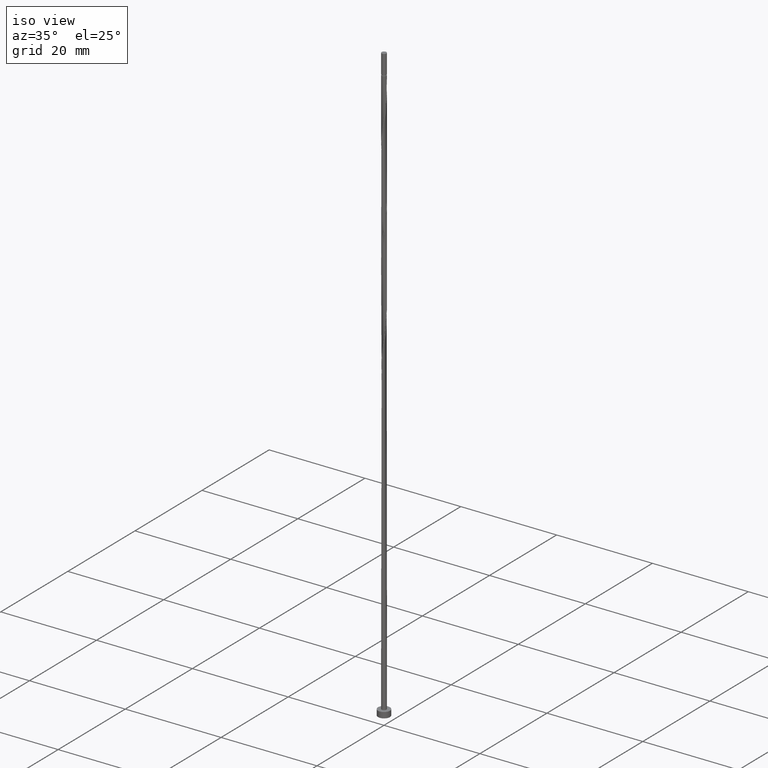
[diagram: clean part render]
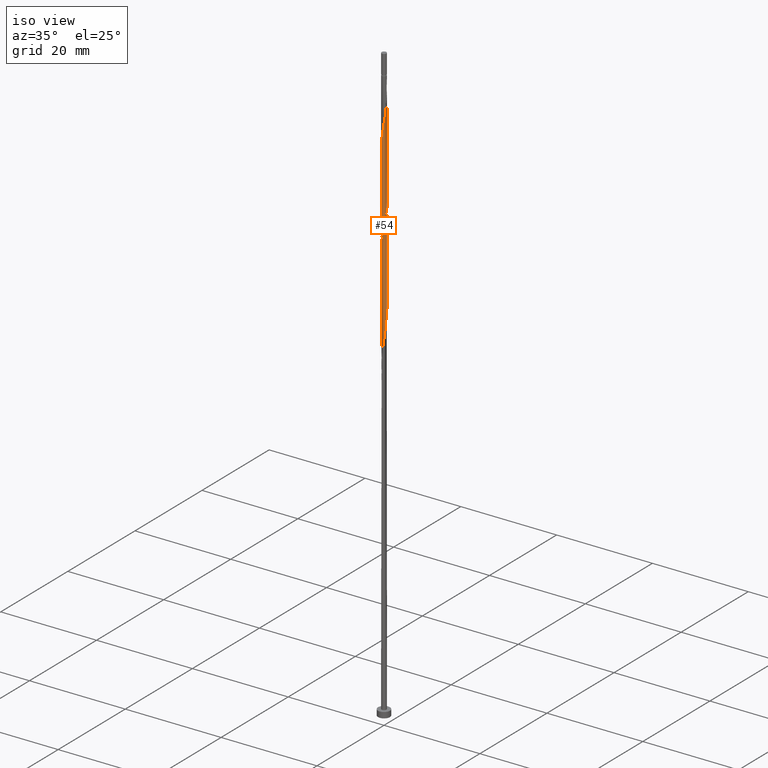
[diagram: same view with one face highlighted and labeled with its STEP entity id]
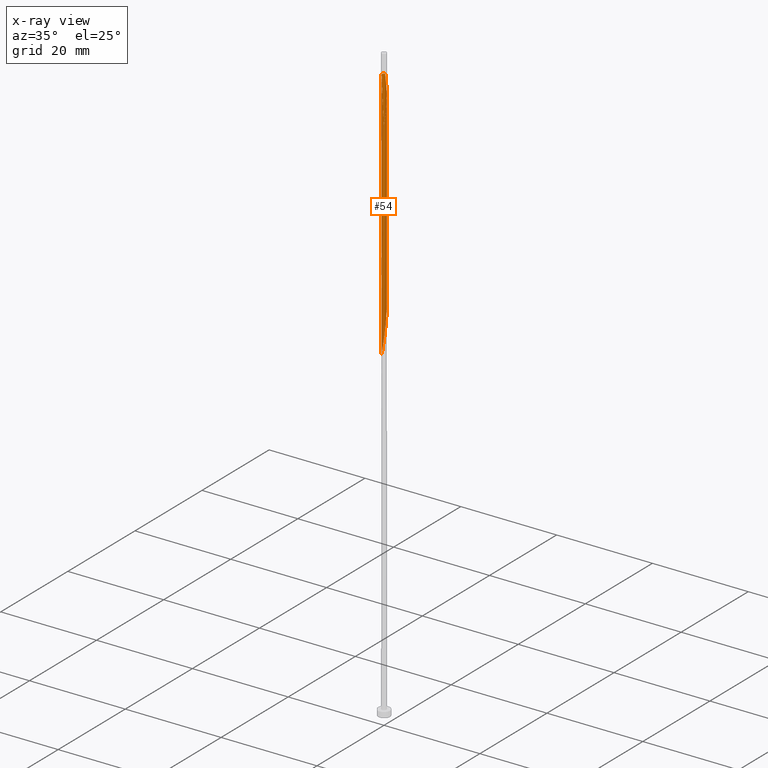
[diagram: x-ray of the same camera — body ghosted, the highlighted face saturated]
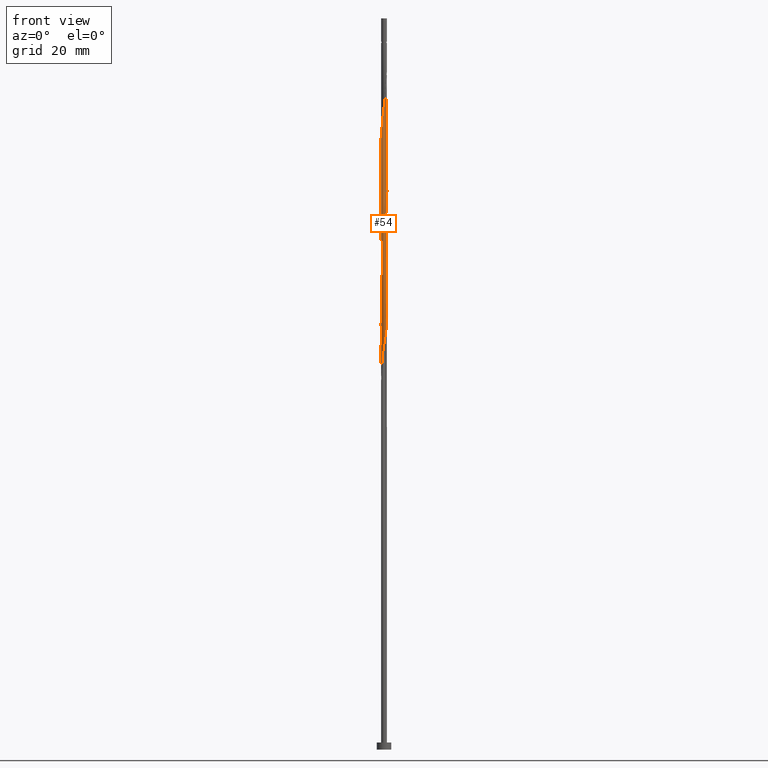
[diagram: same view with one face highlighted and labeled with its STEP entity id]
A machine part, iso view. The second image highlights one B-rep face of the part: STEP entity #54.
The next image is the same camera in x-ray: the body ghosted, the highlighted face saturated — about 0% of this face is hidden behind the body in this view.
A second angle (front view) of the same face is appended — the face is thin or edge-on in the first view.
In plain terms, the highlighted cylindrical surface (bore or boss wall) has radius 0.5 mm, axis along (-0, -0, -1).
Its self-contained STEP definition (entity closure, byte-faithful):
#2 = CARTESIAN_POINT ( 'NONE',  ( 0.09949874371066202983, 0.4900000000000007683, 99.97861331922247530 ) ) ;
#9 = CARTESIAN_POINT ( 'NONE',  ( 0.1771071194696849649, 0.4742409471643930785, 99.45777998588917512 ) ) ;
#20 = CARTESIAN_POINT ( 'NONE',  ( -0.4549022214184802460, -0.2075185990424293081, 65.60361331922247530 ) ) ;
#27 = CARTESIAN_POINT ( 'NONE',  ( 0.4742409471643930785, -0.1771071194696849371, 73.41611331922246109 ) ) ;
#52 = CARTESIAN_POINT ( 'NONE',  ( 0.2460472558129308540, -0.4352708902590740059, 111.4369466525557897 ) ) ;
#54 = ADVANCED_FACE ( 'NONE', ( #1329 ), #106, .T. ) ;
#57 = EDGE_CURVE ( 'NONE', #176, #658, #398, .T. ) ;
#58 = ORIENTED_EDGE ( 'NONE', *, *, #318, .F. ) ;
#79 = CARTESIAN_POINT ( 'NONE',  ( -0.2075185990424293636, 0.4549022214184802460, 81.22861331922248951 ) ) ;
#81 = AXIS2_PLACEMENT_3D ( 'NONE', #1258, #235, #784 ) ;
#88 = CARTESIAN_POINT ( 'NONE',  ( 0.1354691653006749874, -0.4877699385847474312, 91.12444665255581810 ) ) ;
#95 = DIRECTION ( 'NONE',  ( -0.000000000000000000, -0.000000000000000000, -1.000000000000000000 ) ) ;
#106 = CYLINDRICAL_SURFACE ( 'NONE', #1331, 0.5000000000000000000 ) ;
#116 = CARTESIAN_POINT ( 'NONE',  ( -0.09949874371066196044, -0.4900000000000007683, 68.72861331922247530 ) ) ;
#124 = CARTESIAN_POINT ( 'NONE',  ( 0.2460472558129309373, 0.4352708902590740059, 78.10361331922250372 ) ) ;
#127 = CARTESIAN_POINT ( 'NONE',  ( -0.5000000000000000000, 0.000000000000000000, 125.0000000000000000 ) ) ;
#129 = CARTESIAN_POINT ( 'NONE',  ( -0.5000000000000004441, 0.05025189076296197876, 105.5174445186181913 ) ) ;
#131 = CARTESIAN_POINT ( 'NONE',  ( 0.3379344330689691978, -0.3685109482041951101, 71.85361331922246109 ) ) ;
#135 = CARTESIAN_POINT ( 'NONE',  ( -0.1354691653006751817, -0.4877699385847474867, 108.8327799858891609 ) ) ;
#137 = CARTESIAN_POINT ( 'NONE',  ( 0.09949874371066202983, 0.4900000000000007683, 79.14527998588911828 ) ) ;
#156 = CARTESIAN_POINT ( 'NONE',  ( 0.4220345042522134493, -0.2795680327841838508, 112.9994466525558465 ) ) ;
#164 = CARTESIAN_POINT ( 'NONE',  ( 0.4877699385847474867, -0.1354691653006752095, 114.0411133192224753 ) ) ;
#176 = VERTEX_POINT ( 'NONE', #1051 ) ;
#180 = VERTEX_POINT ( 'NONE', #493 ) ;
#183 = LINE ( 'NONE', #527, #484 ) ;
#185 = DIRECTION ( 'NONE',  ( -0.000000000000000000, -0.000000000000000000, -1.000000000000000000 ) ) ;
#189 = CARTESIAN_POINT ( 'NONE',  ( -0.4549022214184802460, -0.2075185990424293081, 86.43694665255578968 ) ) ;
#199 = CARTESIAN_POINT ( 'NONE',  ( 0.3379344330689694198, 0.3685109482041950546, 117.6869466525558039 ) ) ;
#208 = CARTESIAN_POINT ( 'NONE',  ( 0.05678939867451797407, -0.4967644957101778891, 90.60361331922246109 ) ) ;
#222 = CARTESIAN_POINT ( 'NONE',  ( -0.4352708902590740059, 0.2460472558129308540, 104.1452799858891183 ) ) ;
#225 = CARTESIAN_POINT ( 'NONE',  ( -0.09949874371066196044, -0.4900000000000007683, 89.56194665255580389 ) ) ;
#230 = CARTESIAN_POINT ( 'NONE',  ( 0.4877699385847474312, 0.1354691653006749874, 96.33277998588914670 ) ) ;
#235 = DIRECTION ( 'NONE',  ( -0.000000000000000000, -0.000000000000000000, -1.000000000000000000 ) ) ;
#238 = CARTESIAN_POINT ( 'NONE',  ( -0.4967644957101778891, -0.05678939867451799489, 64.56194665255578968 ) ) ;
#249 = CARTESIAN_POINT ( 'NONE',  ( -0.2795680327841836288, 0.4220345042522133383, 102.5827799858891467 ) ) ;
#269 = CARTESIAN_POINT ( 'NONE',  ( 0.09949874371066182166, -0.4900000000000008238, 110.3952799858891325 ) ) ;
#276 = CARTESIAN_POINT ( 'NONE',  ( -0.3379344330689693088, -0.3685109482041951101, 107.2702799858891609 ) ) ;
#291 = CARTESIAN_POINT ( 'NONE',  ( 0.1354691653006752095, 0.4877699385847474867, 119.2494466525558039 ) ) ;
#300 = CARTESIAN_POINT ( 'NONE',  ( 0.4742409471643930785, -0.1771071194696849371, 94.24944665255583232 ) ) ;
#314 = ORIENTED_EDGE ( 'NONE', *, *, #57, .F. ) ;
#318 = EDGE_CURVE ( 'NONE', #1293, #176, #594, .T. ) ;
#324 = CARTESIAN_POINT ( 'NONE',  ( -0.02189036795163908089, -0.5057590528356085136, 90.08277998588914670 ) ) ;
#332 = CARTESIAN_POINT ( 'NONE',  ( -0.4742409471643931340, 0.1771071194696848261, 83.83277998588916091 ) ) ;
#339 = CARTESIAN_POINT ( 'NONE',  ( -0.3149873921561771040, -0.3963008333537548777, 67.16611331922247530 ) ) ;
#346 = CARTESIAN_POINT ( 'NONE',  ( -0.5000000000000007772, 3.335965369263282895E-16, 64.18508242735939007 ) ) ;
#354 = CARTESIAN_POINT ( 'NONE',  ( -0.3379344330689693088, 0.3685109482041951101, 103.1036133192224611 ) ) ;
#359 = EDGE_CURVE ( 'NONE', #873, #180, #742, .T. ) ;
#369 = CARTESIAN_POINT ( 'NONE',  ( 0.3149873921561769929, -0.3963008333537549888, 111.9577799858891467 ) ) ;
#391 = CARTESIAN_POINT ( 'NONE',  ( 0.4742409471643931895, 0.1771071194696847428, 116.1244466525557897 ) ) ;
#398 =( BOUNDED_CURVE ( )  B_SPLINE_CURVE ( 2, ( #1002, #403, #646, #300, #862, #1449, #430, #1222, #1100, #88, #208, #324, #225, #536, #1209, #1431, #1085, #773, #189, #872, #890, #423, #656, #332, #780, #1109, #544, #1091, #79, #523, #897, #1124, #137, #1032, #124, #1036, #1254, #1025, #561, #697, #1246, #1344, #568, #27, #678, #916, #131, #1370, #794, #574, #468, #904, #116, #913, #1365, #339, #1152, #1011, #20, #1349, #238, #786, #346 ),
 .UNSPECIFIED., .F., .T. ) 
 B_SPLINE_CURVE_WITH_KNOTS ( ( 3, 2, 2, 2, 2, 2, 2, 2, 2, 2, 2, 2, 2, 2, 2, 2, 2, 2, 2, 2, 2, 2, 2, 2, 2, 2, 2, 2, 2, 2, 2, 3 ),
 ( 0.5545322023138551382, 0.5625000000000000000, 0.5749999999999999556, 0.5875000000000000222, 0.5999999999999999778, 0.6125000000000000444, 0.6250000000000000000, 0.6374999999999999556, 0.6500000000000000222, 0.6624999999999999778, 0.6750000000000000444, 0.6875000000000000000, 0.6999999999999999556, 0.7125000000000000222, 0.7249999999999999778, 0.7375000000000000444, 0.7500000000000000000, 0.7624999999999999556, 0.7750000000000000222, 0.7874999999999999778, 0.8000000000000000444, 0.8125000000000000000, 0.8249999999999999556, 0.8375000000000000222, 0.8499999999999999778, 0.8625000000000000444, 0.8750000000000000000, 0.8874999999999999556, 0.8999999999999999112, 0.9124999999999998668, 0.9250000000000000444, 0.9295322023138552492 ),
 .UNSPECIFIED. ) 
 CURVE ( )  GEOMETRIC_REPRESENTATION_ITEM ( )  RATIONAL_B_SPLINE_CURVE ( ( 0.9039174447099374010, 0.9019565955404665880, 0.9090909090909150558, 0.8978984914501311199, 0.9090909090909150558, 0.8978984914501311199, 0.9090909090909150558, 0.8978984914501311199, 0.9090909090909150558, 0.8978984914501311199, 0.9090909090909150558, 0.8978984914501311199, 0.9090909090909150558, 0.8978984914501311199, 0.9090909090909150558, 0.8978984914501311199, 0.9090909090909150558, 0.8978984914501311199, 0.9090909090909150558, 0.8978984914501311199, 0.9090909090909150558, 0.8978984914501311199, 0.9090909090909150558, 0.8978984914501311199, 0.9090909090909150558, 0.8978984914501311199, 0.9090909090909150558, 0.8978984914501311199, 0.9090909090909150558, 0.8978984914501311199, 0.9090909090909150558, 0.8978984914501311199, 0.9090909090909150558, 0.8978984914501311199, 0.9090909090909150558, 0.8978984914501311199, 0.9090909090909150558, 0.8978984914501311199, 0.9090909090909150558, 0.8978984914501311199, 0.9090909090909150558, 0.8978984914501311199, 0.9090909090909150558, 0.8978984914501311199, 0.9090909090909150558, 0.8978984914501311199, 0.9090909090909150558, 0.8978984914501311199, 0.9090909090909150558, 0.8978984914501311199, 0.9090909090909150558, 0.8978984914501311199, 0.9090909090909150558, 0.8978984914501311199, 0.9090909090909150558, 0.8978984914501311199, 0.9090909090909150558, 0.8978984914501311199, 0.9090909090909150558, 0.8978984914501311199, 0.9090909090909150558, 0.9050328050005793656, 0.9039174447099372900 ) ) 
 REPRESENTATION_ITEM ( '' )  );
#403 = CARTESIAN_POINT ( 'NONE',  ( 0.5000000000000008882, -0.05025189076296009832, 95.10077785195156252 ) ) ;
#416 = CARTESIAN_POINT ( 'NONE',  ( 0.05678939867451817530, 0.4967644957101780001, 119.7702799858891467 ) ) ;
#423 = CARTESIAN_POINT ( 'NONE',  ( -0.5057590528356085136, 0.02189036795163903579, 84.87444665255581810 ) ) ;
#430 = CARTESIAN_POINT ( 'NONE',  ( 0.3379344330689691978, -0.3685109482041951101, 92.68694665255581810 ) ) ;
#442 = DIRECTION ( 'NONE',  ( -1.000000000000000000, 0.000000000000000000, 0.000000000000000000 ) ) ;
#446 = CARTESIAN_POINT ( 'NONE',  ( 0.3149873921561771040, 0.3963008333537548777, 98.41611331922246109 ) ) ;
#460 = CARTESIAN_POINT ( 'NONE',  ( 0.3685109482041951101, 0.3379344330689691978, 97.89527998588911828 ) ) ;
#468 = CARTESIAN_POINT ( 'NONE',  ( 0.05678939867451797407, -0.4967644957101778891, 69.77027998588913249 ) ) ;
#471 = CARTESIAN_POINT ( 'NONE',  ( -0.2795680327841836843, -0.4220345042522134493, 107.7911133192224753 ) ) ;
#484 = VECTOR ( 'NONE', #874, 1000.000000000000000 ) ;
#493 = CARTESIAN_POINT ( 'NONE',  ( -0.09949874371065796363, 0.4899999999999973821, 120.8119466525557613 ) ) ;
#498 = CARTESIAN_POINT ( 'NONE',  ( 0.4967644957101780001, -0.05678939867451812673, 114.5619466525558039 ) ) ;
#512 = EDGE_CURVE ( 'NONE', #1434, #658, #688, .T. ) ;
#513 = CARTESIAN_POINT ( 'NONE',  ( 0.2075185990424294746, 0.4549022214184804125, 118.7286133192224611 ) ) ;
#523 = CARTESIAN_POINT ( 'NONE',  ( -0.1354691653006750429, 0.4877699385847474312, 80.70777998588914670 ) ) ;
#527 = CARTESIAN_POINT ( 'NONE',  ( -0.5000000000000000000, 0.000000000000000000, 125.0000000000000000 ) ) ;
#536 = CARTESIAN_POINT ( 'NONE',  ( -0.1771071194696849094, -0.4742409471643930785, 89.04111331922250372 ) ) ;
#544 = CARTESIAN_POINT ( 'NONE',  ( -0.3379344330689693088, 0.3685109482041951101, 82.27027998588911828 ) ) ;
#553 = CARTESIAN_POINT ( 'NONE',  ( 0.000000000000000000, 0.000000000000000000, 125.0000000000000000 ) ) ;
#556 = VECTOR ( 'NONE', #572, 1000.000000000000000 ) ;
#559 = CARTESIAN_POINT ( 'NONE',  ( -0.4900000000000007683, 0.09949874371066191880, 105.1869466525557897 ) ) ;
#561 = CARTESIAN_POINT ( 'NONE',  ( 0.4549022214184803570, 0.2075185990424292248, 76.02027998588914670 ) ) ;
#568 = CARTESIAN_POINT ( 'NONE',  ( 0.4900000000000007683, -0.09949874371066198819, 73.93694665255580389 ) ) ;
#572 = DIRECTION ( 'NONE',  ( -0.000000000000000000, -0.000000000000000000, -1.000000000000000000 ) ) ;
#574 = CARTESIAN_POINT ( 'NONE',  ( 0.1354691653006749874, -0.4877699385847474312, 70.29111331922247530 ) ) ;
#585 = CARTESIAN_POINT ( 'NONE',  ( 0.4549022214184804125, -0.2075185990424294191, 113.5202799858891325 ) ) ;
#594 =( BOUNDED_CURVE ( )  B_SPLINE_CURVE ( 2, ( #1237, #129, #559, #1009, #222, #1121, #354, #249, #1252, #1017, #696, #1030, #2, #9, #676, #446, #460, #1356, #1364, #230, #895, #1130, #1342 ),
 .UNSPECIFIED., .F., .T. ) 
 B_SPLINE_CURVE_WITH_KNOTS ( ( 3, 2, 2, 2, 2, 2, 2, 2, 2, 2, 2, 3 ),
 ( 0.4295322023138554157, 0.4375000000000000000, 0.4500000000000000111, 0.4625000000000000222, 0.4749999999999999778, 0.4874999999999999889, 0.5000000000000000000, 0.5124999999999999556, 0.5250000000000000222, 0.5374999999999999778, 0.5500000000000000444, 0.5545322023138551382 ),
 .UNSPECIFIED. ) 
 CURVE ( )  GEOMETRIC_REPRESENTATION_ITEM ( )  RATIONAL_B_SPLINE_CURVE ( ( 0.9039174447099372900, 0.9019565955404669211, 0.9090909090909150558, 0.8978984914501311199, 0.9090909090909150558, 0.8978984914501311199, 0.9090909090909150558, 0.8978984914501311199, 0.9090909090909150558, 0.8978984914501311199, 0.9090909090909150558, 0.8978984914501311199, 0.9090909090909150558, 0.8978984914501311199, 0.9090909090909150558, 0.8978984914501311199, 0.9090909090909150558, 0.8978984914501311199, 0.9090909090909150558, 0.8978984914501311199, 0.9090909090909150558, 0.9050328050005795877, 0.9039174447099374010 ) ) 
 REPRESENTATION_ITEM ( '' )  );
#597 = CARTESIAN_POINT ( 'NONE',  ( -0.5000000000000008882, -7.496551391602879189E-18, 104.5221442110855463 ) ) ;
#628 = CARTESIAN_POINT ( 'NONE',  ( 0.2795680327841838508, 0.4220345042522133938, 118.2077799858891751 ) ) ;
#646 = CARTESIAN_POINT ( 'NONE',  ( 0.4900000000000007683, -0.09949874371066198819, 94.77027998588908986 ) ) ;
#650 = CARTESIAN_POINT ( 'NONE',  ( -0.02189036795163886925, 0.5057590528356084025, 120.2911133192225037 ) ) ;
#656 = CARTESIAN_POINT ( 'NONE',  ( -0.4900000000000007683, 0.09949874371066191880, 84.35361331922247530 ) ) ;
#658 = VERTEX_POINT ( 'NONE', #1183 ) ;
#676 = CARTESIAN_POINT ( 'NONE',  ( 0.2460472558129309373, 0.4352708902590740059, 98.93694665255583232 ) ) ;
#678 = CARTESIAN_POINT ( 'NONE',  ( 0.4352708902590740059, -0.2460472558129309373, 72.89527998588914670 ) ) ;
#688 = LINE ( 'NONE', #127, #556 ) ;
#696 = CARTESIAN_POINT ( 'NONE',  ( -0.05678939867451803652, 0.4967644957101777781, 101.0202799858891183 ) ) ;
#697 = CARTESIAN_POINT ( 'NONE',  ( 0.4877699385847474312, 0.1354691653006749874, 75.49944665255580389 ) ) ;
#717 = CARTESIAN_POINT ( 'NONE',  ( 0.3685109482041951101, -0.3379344330689693088, 112.4786133192225037 ) ) ;
#724 = CARTESIAN_POINT ( 'NONE',  ( -0.2075185990424294191, -0.4549022214184804125, 108.3119466525557755 ) ) ;
#738 = ORIENTED_EDGE ( 'NONE', *, *, #1261, .F. ) ;
#742 = CIRCLE ( 'NONE', #81, 0.4999999999999972800 ) ;
#773 = CARTESIAN_POINT ( 'NONE',  ( -0.4220345042522133383, -0.2795680327841835178, 86.95777998588913249 ) ) ;
#776 = EDGE_CURVE ( 'NONE', #1434, #180, #1013, .T. ) ;
#778 = EDGE_CURVE ( 'NONE', #873, #1293, #183, .T. ) ;
#780 = CARTESIAN_POINT ( 'NONE',  ( -0.4352708902590740059, 0.2460472558129308540, 83.31194665255580389 ) ) ;
#784 = DIRECTION ( 'NONE',  ( -1.000000000000000000, 0.000000000000000000, 0.000000000000000000 ) ) ;
#786 = CARTESIAN_POINT ( 'NONE',  ( -0.5000000000000007772, -0.02848686872321641583, 64.37459351656667650 ) ) ;
#794 = CARTESIAN_POINT ( 'NONE',  ( 0.2075185990424293081, -0.4549022214184802460, 70.81194665255578968 ) ) ;
#801 = CARTESIAN_POINT ( 'NONE',  ( -0.5000000000000007772, 7.496551391602882579E-17, 105.8517490940260473 ) ) ;
#827 = CARTESIAN_POINT ( 'NONE',  ( -0.5000000000000006661, -0.05025189076296138202, 104.8564487864933596 ) ) ;
#833 = CARTESIAN_POINT ( 'NONE',  ( -0.3963008333537549888, -0.3149873921561770485, 106.7494466525557897 ) ) ;
#862 = CARTESIAN_POINT ( 'NONE',  ( 0.4352708902590740059, -0.2460472558129309373, 93.72861331922247530 ) ) ;
#869 = CARTESIAN_POINT ( 'NONE',  ( 0.5000000000000000000, 6.123233995736766036E-17, 125.0000000000000000 ) ) ;
#872 = CARTESIAN_POINT ( 'NONE',  ( -0.4877699385847474312, -0.1354691653006750429, 85.91611331922247530 ) ) ;
#873 = VERTEX_POINT ( 'NONE', #1186 ) ;
#874 = DIRECTION ( 'NONE',  ( -0.000000000000000000, -0.000000000000000000, -1.000000000000000000 ) ) ;
#880 = ORIENTED_EDGE ( 'NONE', *, *, #1261, .T. ) ;
#890 = CARTESIAN_POINT ( 'NONE',  ( -0.4967644957101778891, -0.05678939867451799489, 85.39527998588913249 ) ) ;
#895 = CARTESIAN_POINT ( 'NONE',  ( 0.4967644957101778891, 0.05678939867451793938, 95.81194665255580389 ) ) ;
#897 = CARTESIAN_POINT ( 'NONE',  ( -0.05678939867451803652, 0.4967644957101777781, 80.18694665255576126 ) ) ;
#904 = CARTESIAN_POINT ( 'NONE',  ( -0.02189036795163908089, -0.5057590528356085136, 69.24944665255581810 ) ) ;
#913 = CARTESIAN_POINT ( 'NONE',  ( -0.1771071194696849094, -0.4742409471643930785, 68.20777998588914670 ) ) ;
#916 = CARTESIAN_POINT ( 'NONE',  ( 0.3963008333537548777, -0.3149873921561771040, 72.37444665255580389 ) ) ;
#924 = CARTESIAN_POINT ( 'NONE',  ( -0.4742409471643931895, -0.1771071194696847984, 105.7077799858891751 ) ) ;
#959 = CARTESIAN_POINT ( 'NONE',  ( -0.09949874371065796363, 0.4899999999999973821, 120.8119466525557471 ) ) ;
#992 = EDGE_LOOP ( 'NONE', ( #1045, #1304, #1060, #1173, #314, #738, #880, #58 ) ) ;
#1002 = CARTESIAN_POINT ( 'NONE',  ( 0.5000000000000007772, -3.898206723633499335E-16, 95.43508242735940428 ) ) ;
#1009 = CARTESIAN_POINT ( 'NONE',  ( -0.4742409471643931340, 0.1771071194696848261, 104.6661133192224753 ) ) ;
#1011 = CARTESIAN_POINT ( 'NONE',  ( -0.4220345042522133383, -0.2795680327841835178, 66.12444665255581810 ) ) ;
#1013 =( BOUNDED_CURVE ( )  B_SPLINE_CURVE ( 2, ( #597, #827, #1391, #924, #1148, #833, #276, #471, #724, #135, #1278, #1377, #269, #1368, #52, #369, #717, #156, #585, #164, #498, #1398, #1178, #391, #1034, #1206, #199, #628, #513, #291, #416, #650, #959 ),
 .UNSPECIFIED., .F., .T. ) 
 B_SPLINE_CURVE_WITH_KNOTS ( ( 3, 2, 2, 2, 2, 2, 2, 2, 2, 2, 2, 2, 2, 2, 2, 2, 3 ),
 ( 0.5545322023138553602, 0.5625000000000000000, 0.5749999999999999556, 0.5875000000000000222, 0.5999999999999999778, 0.6125000000000000444, 0.6250000000000000000, 0.6374999999999999556, 0.6500000000000000222, 0.6624999999999999778, 0.6750000000000000444, 0.6875000000000000000, 0.6999999999999999556, 0.7125000000000000222, 0.7249999999999999778, 0.7375000000000000444, 0.7500000000000000000 ),
 .UNSPECIFIED. ) 
 CURVE ( )  GEOMETRIC_REPRESENTATION_ITEM ( )  RATIONAL_B_SPLINE_CURVE ( ( 0.9039174447099376231, 0.9019565955404671431, 0.9090909090909153889, 0.8978984914501314529, 0.9090909090909153889, 0.8978984914501314529, 0.9090909090909153889, 0.8978984914501314529, 0.9090909090909153889, 0.8978984914501314529, 0.9090909090909153889, 0.8978984914501314529, 0.9090909090909153889, 0.8978984914501314529, 0.9090909090909153889, 0.8978984914501314529, 0.9090909090909153889, 0.8978984914501314529, 0.9090909090909153889, 0.8978984914501314529, 0.9090909090909153889, 0.8978984914501314529, 0.9090909090909153889, 0.8978984914501314529, 0.9090909090909153889, 0.8978984914501314529, 0.9090909090909153889, 0.8978984914501314529, 0.9090909090909153889, 0.8978984914501314529, 0.9090909090909153889, 0.8978984914501314529, 0.9090909090909153889 ) ) 
 REPRESENTATION_ITEM ( '' )  );
#1017 = CARTESIAN_POINT ( 'NONE',  ( -0.1354691653006750429, 0.4877699385847474312, 101.5411133192224895 ) ) ;
#1025 = CARTESIAN_POINT ( 'NONE',  ( 0.4220345042522133383, 0.2795680327841835178, 76.54111331922247530 ) ) ;
#1030 = CARTESIAN_POINT ( 'NONE',  ( 0.02189036795163901497, 0.5057590528356085136, 100.4994466525557613 ) ) ;
#1032 = CARTESIAN_POINT ( 'NONE',  ( 0.1771071194696849649, 0.4742409471643930785, 78.62444665255581810 ) ) ;
#1034 = CARTESIAN_POINT ( 'NONE',  ( 0.4352708902590740059, 0.2460472558129308540, 116.6452799858891325 ) ) ;
#1036 = CARTESIAN_POINT ( 'NONE',  ( 0.3149873921561771040, 0.3963008333537548777, 77.58277998588911828 ) ) ;
#1045 = ORIENTED_EDGE ( 'NONE', *, *, #778, .F. ) ;
#1051 = CARTESIAN_POINT ( 'NONE',  ( 0.5000000000000007772, -3.898206723633499335E-16, 95.43508242735940428 ) ) ;
#1060 = ORIENTED_EDGE ( 'NONE', *, *, #776, .F. ) ;
#1085 = CARTESIAN_POINT ( 'NONE',  ( -0.3685109482041951101, -0.3379344330689691978, 87.47861331922246109 ) ) ;
#1091 = CARTESIAN_POINT ( 'NONE',  ( -0.2795680327841836288, 0.4220345042522133383, 81.74944665255583232 ) ) ;
#1100 = CARTESIAN_POINT ( 'NONE',  ( 0.2075185990424293081, -0.4549022214184802460, 91.64527998588911828 ) ) ;
#1109 = CARTESIAN_POINT ( 'NONE',  ( -0.3963008333537548777, 0.3149873921561770485, 82.79111331922248951 ) ) ;
#1121 = CARTESIAN_POINT ( 'NONE',  ( -0.3963008333537548777, 0.3149873921561770485, 103.6244466525558039 ) ) ;
#1124 = CARTESIAN_POINT ( 'NONE',  ( 0.02189036795163901497, 0.5057590528356085136, 79.66611331922247530 ) ) ;
#1130 = CARTESIAN_POINT ( 'NONE',  ( 0.5000000000000006661, 0.02848686872321705421, 95.62459351656670492 ) ) ;
#1142 = CARTESIAN_POINT ( 'NONE',  ( 0.5000000000000000000, 6.123233995736766036E-17, 120.8119466525558039 ) ) ;
#1148 = CARTESIAN_POINT ( 'NONE',  ( -0.4352708902590740059, -0.2460472558129308818, 106.2286133192224753 ) ) ;
#1152 = CARTESIAN_POINT ( 'NONE',  ( -0.3685109482041951101, -0.3379344330689691978, 66.64527998588914670 ) ) ;
#1173 = ORIENTED_EDGE ( 'NONE', *, *, #512, .T. ) ;
#1178 = CARTESIAN_POINT ( 'NONE',  ( 0.4900000000000008238, 0.09949874371066182166, 115.6036133192224895 ) ) ;
#1179 = VECTOR ( 'NONE', #185, 1000.000000000000000 ) ;
#1183 = CARTESIAN_POINT ( 'NONE',  ( -0.5000000000000007772, 3.335965369263282895E-16, 64.18508242735939007 ) ) ;
#1186 = CARTESIAN_POINT ( 'NONE',  ( -0.4999999999999972800, 0.000000000000000000, 120.8119466525558039 ) ) ;
#1199 = CARTESIAN_POINT ( 'NONE',  ( -0.5000000000000008882, -7.496551391602879189E-18, 104.5221442110855463 ) ) ;
#1206 = CARTESIAN_POINT ( 'NONE',  ( 0.3963008333537550443, 0.3149873921561769929, 117.1661133192224753 ) ) ;
#1207 = LINE ( 'NONE', #869, #1179 ) ;
#1209 = CARTESIAN_POINT ( 'NONE',  ( -0.2460472558129309373, -0.4352708902590740059, 88.52027998588913249 ) ) ;
#1222 = CARTESIAN_POINT ( 'NONE',  ( 0.2795680327841835178, -0.4220345042522133383, 92.16611331922248951 ) ) ;
#1237 = CARTESIAN_POINT ( 'NONE',  ( -0.5000000000000007772, 7.496551391602881346E-17, 105.8517490940260473 ) ) ;
#1246 = CARTESIAN_POINT ( 'NONE',  ( 0.4967644957101778891, 0.05678939867451793938, 74.97861331922247530 ) ) ;
#1252 = CARTESIAN_POINT ( 'NONE',  ( -0.2075185990424293636, 0.4549022214184802460, 102.0619466525558039 ) ) ;
#1254 = CARTESIAN_POINT ( 'NONE',  ( 0.3685109482041951101, 0.3379344330689691978, 77.06194665255580389 ) ) ;
#1258 = CARTESIAN_POINT ( 'NONE',  ( 0.000000000000000000, 0.000000000000000000, 120.8119466525558039 ) ) ;
#1261 = EDGE_CURVE ( 'NONE', #1320, #176, #1207, .T. ) ;
#1278 = CARTESIAN_POINT ( 'NONE',  ( -0.05678939867451809898, -0.4967644957101780001, 109.3536133192224753 ) ) ;
#1293 = VERTEX_POINT ( 'NONE', #801 ) ;
#1304 = ORIENTED_EDGE ( 'NONE', *, *, #359, .T. ) ;
#1320 = VERTEX_POINT ( 'NONE', #1142 ) ;
#1329 = FACE_OUTER_BOUND ( 'NONE', #992, .T. ) ;
#1331 = AXIS2_PLACEMENT_3D ( 'NONE', #553, #95, #442 ) ;
#1342 = CARTESIAN_POINT ( 'NONE',  ( 0.5000000000000007772, -3.898206723633499335E-16, 95.43508242735940428 ) ) ;
#1344 = CARTESIAN_POINT ( 'NONE',  ( 0.5057590528356085136, -0.02189036795163910171, 74.45777998588914670 ) ) ;
#1349 = CARTESIAN_POINT ( 'NONE',  ( -0.4877699385847474312, -0.1354691653006750429, 65.08277998588914670 ) ) ;
#1356 = CARTESIAN_POINT ( 'NONE',  ( 0.4220345042522133383, 0.2795680327841835178, 97.37444665255580389 ) ) ;
#1364 = CARTESIAN_POINT ( 'NONE',  ( 0.4549022214184803570, 0.2075185990424292248, 96.85361331922247530 ) ) ;
#1365 = CARTESIAN_POINT ( 'NONE',  ( -0.2460472558129309373, -0.4352708902590740059, 67.68694665255580389 ) ) ;
#1368 = CARTESIAN_POINT ( 'NONE',  ( 0.1771071194696847428, -0.4742409471643931895, 110.9161133192224469 ) ) ;
#1370 = CARTESIAN_POINT ( 'NONE',  ( 0.2795680327841835178, -0.4220345042522133383, 71.33277998588914670 ) ) ;
#1377 = CARTESIAN_POINT ( 'NONE',  ( 0.02189036795163892130, -0.5057590528356084025, 109.8744466525558465 ) ) ;
#1391 = CARTESIAN_POINT ( 'NONE',  ( -0.4900000000000008238, -0.09949874371066187717, 105.1869466525557897 ) ) ;
#1398 = CARTESIAN_POINT ( 'NONE',  ( 0.5057590528356084025, 0.02189036795163889701, 115.0827799858891609 ) ) ;
#1431 = CARTESIAN_POINT ( 'NONE',  ( -0.3149873921561771040, -0.3963008333537548777, 87.99944665255577547 ) ) ;
#1434 = VERTEX_POINT ( 'NONE', #1199 ) ;
#1449 = CARTESIAN_POINT ( 'NONE',  ( 0.3963008333537548777, -0.3149873921561771040, 93.20777998588913249 ) ) ;